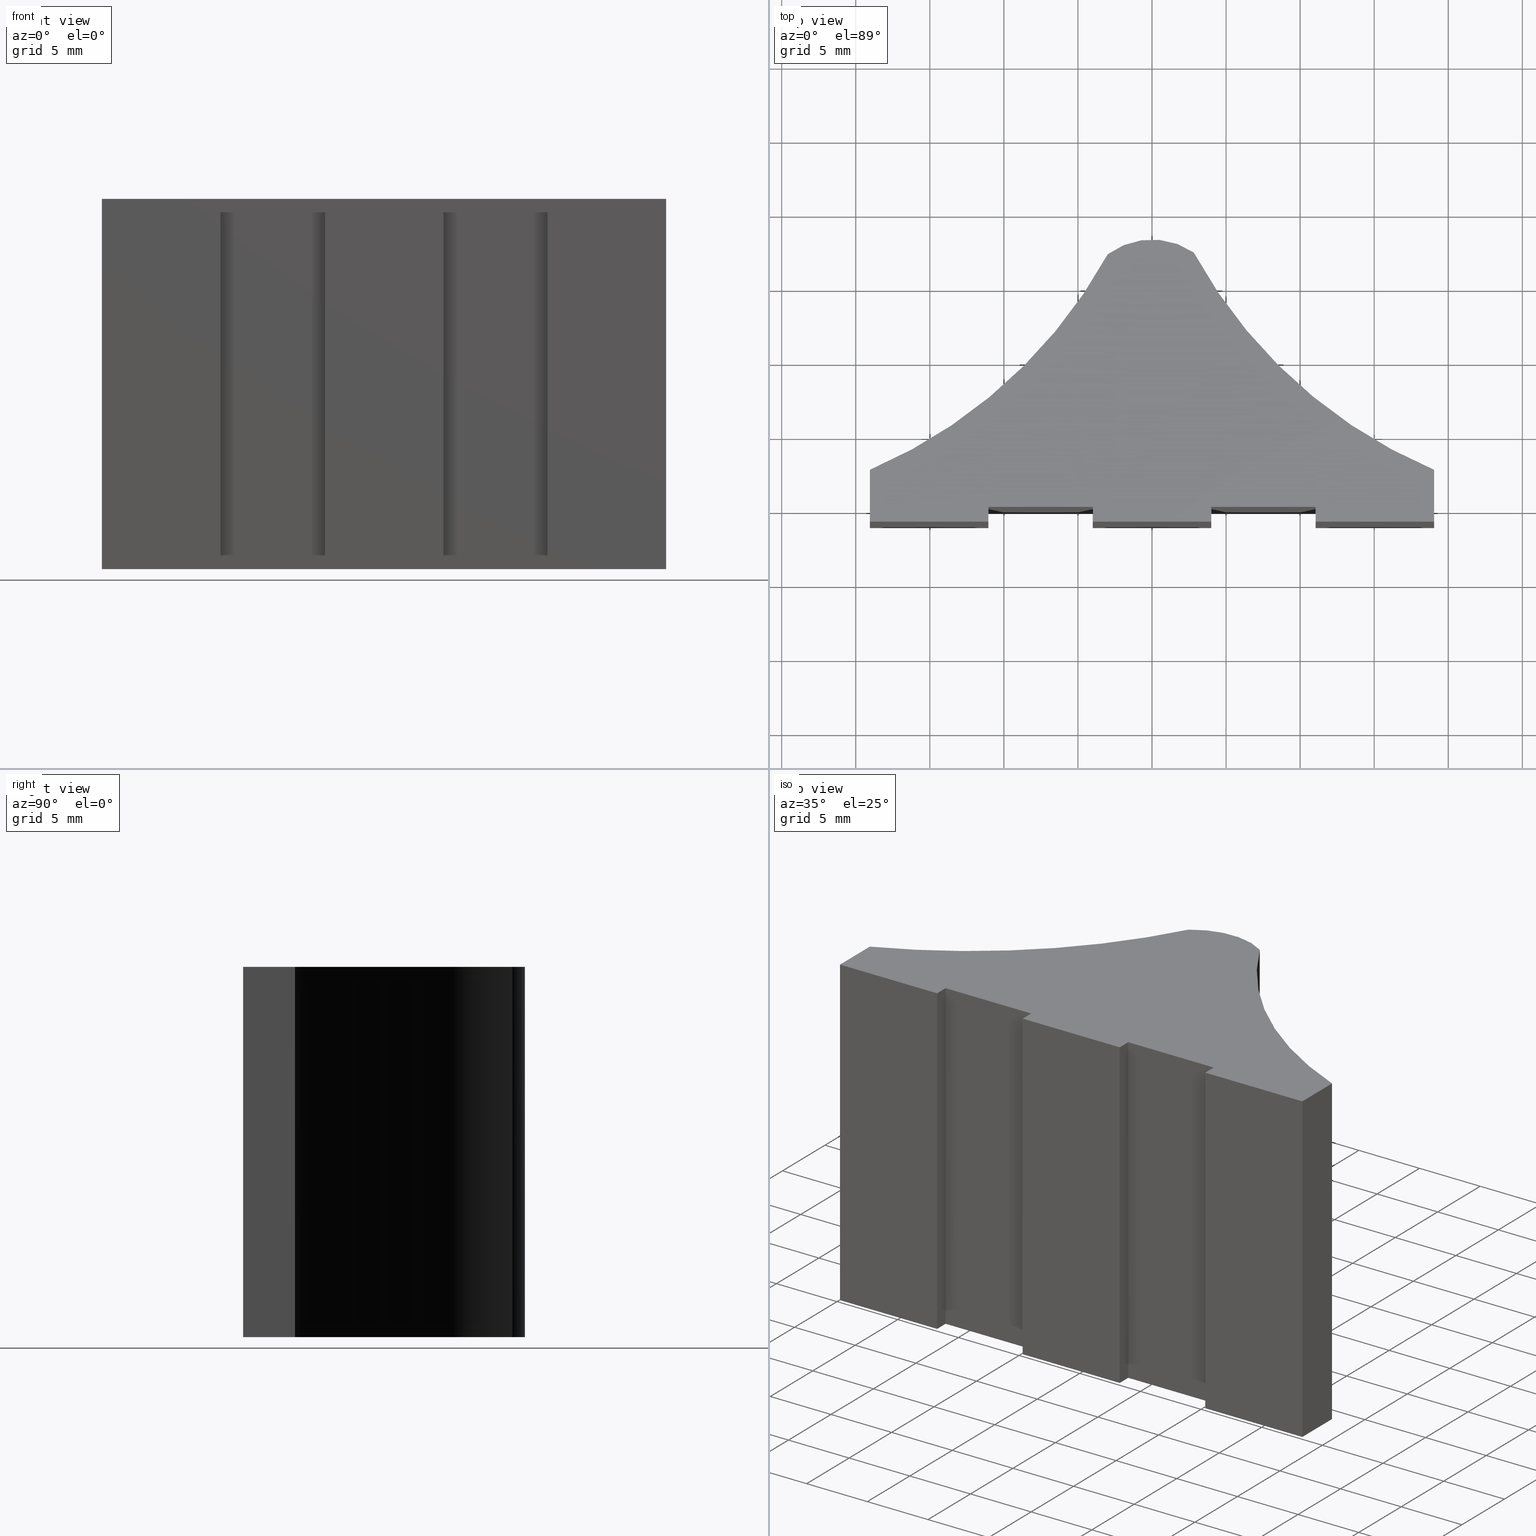
[diagram: canonical four-view strip — front | top / right | iso, engineering-drawing reading convention]
A machine part, canonical four-view strip (front | top / right | iso — engineering-drawing reading convention). The complete STEP part file that produces these views, byte-faithful:
ISO-10303-21;
HEADER;
/* Generated by software containing ST-Developer
 * from STEP Tools, Inc. (www.steptools.com) 
 */

FILE_DESCRIPTION(
/* description */ (''),
/* implementation_level */ '2;1');

FILE_NAME(
/* name */ 'E_3_01_07_09_00_WKZ-0180.stp',
/* time_stamp */ '2025-11-24T12:54:27+01:00',
/* author */ ('d.fischer'),
/* organization */ (''),
/* preprocessor_version */ 'ST-DEVELOPER v20',
/* originating_system */ 'Autodesk Inventor 2025',
/* authorisation */ '');

FILE_SCHEMA (('AUTOMOTIVE_DESIGN { 1 0 10303 214 3 1 1 }'));
ENDSEC;

DATA;
#10=MECHANICAL_DESIGN_GEOMETRIC_PRESENTATION_REPRESENTATION('',(#17,#18),
#529);
#11=SHAPE_REPRESENTATION_RELATIONSHIP('SRR','None',#536,#12);
#12=ADVANCED_BREP_SHAPE_REPRESENTATION('',(#13),#528);
#13=MANIFOLD_SOLID_BREP('Volumenk\X\F6rper1',#312);
#14=CYLINDRICAL_SURFACE('',#348,33.2);
#15=CYLINDRICAL_SURFACE('',#350,5.);
#16=CYLINDRICAL_SURFACE('',#352,33.2);
#17=STYLED_ITEM('',(#546),#300);
#18=STYLED_ITEM('',(#545),#13);
#19=FACE_OUTER_BOUND('',#35,.T.);
#20=FACE_OUTER_BOUND('',#36,.T.);
#21=FACE_OUTER_BOUND('',#37,.T.);
#22=FACE_OUTER_BOUND('',#38,.T.);
#23=FACE_OUTER_BOUND('',#39,.T.);
#24=FACE_OUTER_BOUND('',#40,.T.);
#25=FACE_OUTER_BOUND('',#41,.T.);
#26=FACE_OUTER_BOUND('',#42,.T.);
#27=FACE_OUTER_BOUND('',#43,.T.);
#28=FACE_OUTER_BOUND('',#44,.T.);
#29=FACE_OUTER_BOUND('',#45,.T.);
#30=FACE_OUTER_BOUND('',#46,.T.);
#31=FACE_OUTER_BOUND('',#47,.T.);
#32=FACE_OUTER_BOUND('',#48,.T.);
#33=FACE_OUTER_BOUND('',#49,.T.);
#34=FACE_OUTER_BOUND('',#50,.T.);
#35=EDGE_LOOP('',(#199,#200,#201,#202,#203,#204,#205,#206,#207,#208,#209,
#210,#211,#212));
#36=EDGE_LOOP('',(#213,#214,#215,#216));
#37=EDGE_LOOP('',(#217,#218,#219,#220));
#38=EDGE_LOOP('',(#221,#222,#223,#224));
#39=EDGE_LOOP('',(#225,#226,#227,#228));
#40=EDGE_LOOP('',(#229,#230,#231,#232));
#41=EDGE_LOOP('',(#233,#234,#235,#236));
#42=EDGE_LOOP('',(#237,#238,#239,#240));
#43=EDGE_LOOP('',(#241,#242,#243,#244));
#44=EDGE_LOOP('',(#245,#246,#247,#248));
#45=EDGE_LOOP('',(#249,#250,#251,#252));
#46=EDGE_LOOP('',(#253,#254,#255,#256));
#47=EDGE_LOOP('',(#257,#258,#259,#260));
#48=EDGE_LOOP('',(#261,#262,#263,#264));
#49=EDGE_LOOP('',(#265,#266,#267,#268));
#50=EDGE_LOOP('',(#269,#270,#271,#272,#273,#274,#275,#276,#277,#278,#279,
#280,#281,#282));
#51=CIRCLE('',#336,33.2);
#52=CIRCLE('',#337,5.);
#53=CIRCLE('',#338,33.2);
#54=CIRCLE('',#349,33.2);
#55=CIRCLE('',#351,5.);
#56=CIRCLE('',#353,33.2);
#57=LINE('',#443,#93);
#58=LINE('',#445,#94);
#59=LINE('',#447,#95);
#60=LINE('',#449,#96);
#61=LINE('',#451,#97);
#62=LINE('',#453,#98);
#63=LINE('',#455,#99);
#64=LINE('',#457,#100);
#65=LINE('',#459,#101);
#66=LINE('',#461,#102);
#67=LINE('',#463,#103);
#68=LINE('',#472,#104);
#69=LINE('',#473,#105);
#70=LINE('',#474,#106);
#71=LINE('',#477,#107);
#72=LINE('',#478,#108);
#73=LINE('',#481,#109);
#74=LINE('',#482,#110);
#75=LINE('',#485,#111);
#76=LINE('',#486,#112);
#77=LINE('',#489,#113);
#78=LINE('',#490,#114);
#79=LINE('',#493,#115);
#80=LINE('',#494,#116);
#81=LINE('',#497,#117);
#82=LINE('',#498,#118);
#83=LINE('',#501,#119);
#84=LINE('',#502,#120);
#85=LINE('',#505,#121);
#86=LINE('',#506,#122);
#87=LINE('',#510,#123);
#88=LINE('',#514,#124);
#89=LINE('',#518,#125);
#90=LINE('',#521,#126);
#91=LINE('',#522,#127);
#92=LINE('',#524,#128);
#93=VECTOR('',#361,10.);
#94=VECTOR('',#362,10.);
#95=VECTOR('',#363,10.);
#96=VECTOR('',#364,10.);
#97=VECTOR('',#365,10.);
#98=VECTOR('',#366,10.);
#99=VECTOR('',#367,10.);
#100=VECTOR('',#368,10.);
#101=VECTOR('',#369,10.);
#102=VECTOR('',#370,10.);
#103=VECTOR('',#371,10.);
#104=VECTOR('',#380,10.);
#105=VECTOR('',#381,10.);
#106=VECTOR('',#382,10.);
#107=VECTOR('',#385,10.);
#108=VECTOR('',#386,10.);
#109=VECTOR('',#389,10.);
#110=VECTOR('',#390,10.);
#111=VECTOR('',#393,10.);
#112=VECTOR('',#394,10.);
#113=VECTOR('',#397,10.);
#114=VECTOR('',#398,10.);
#115=VECTOR('',#401,10.);
#116=VECTOR('',#402,10.);
#117=VECTOR('',#405,10.);
#118=VECTOR('',#406,10.);
#119=VECTOR('',#409,10.);
#120=VECTOR('',#410,10.);
#121=VECTOR('',#413,10.);
#122=VECTOR('',#414,10.);
#123=VECTOR('',#419,10.);
#124=VECTOR('',#424,10.);
#125=VECTOR('',#429,10.);
#126=VECTOR('',#432,10.);
#127=VECTOR('',#433,10.);
#128=VECTOR('',#436,10.);
#129=VERTEX_POINT('',#441);
#130=VERTEX_POINT('',#442);
#131=VERTEX_POINT('',#444);
#132=VERTEX_POINT('',#446);
#133=VERTEX_POINT('',#448);
#134=VERTEX_POINT('',#450);
#135=VERTEX_POINT('',#452);
#136=VERTEX_POINT('',#454);
#137=VERTEX_POINT('',#456);
#138=VERTEX_POINT('',#458);
#139=VERTEX_POINT('',#460);
#140=VERTEX_POINT('',#462);
#141=VERTEX_POINT('',#464);
#142=VERTEX_POINT('',#466);
#143=VERTEX_POINT('',#470);
#144=VERTEX_POINT('',#471);
#145=VERTEX_POINT('',#476);
#146=VERTEX_POINT('',#480);
#147=VERTEX_POINT('',#484);
#148=VERTEX_POINT('',#488);
#149=VERTEX_POINT('',#492);
#150=VERTEX_POINT('',#496);
#151=VERTEX_POINT('',#500);
#152=VERTEX_POINT('',#504);
#153=VERTEX_POINT('',#508);
#154=VERTEX_POINT('',#512);
#155=VERTEX_POINT('',#516);
#156=VERTEX_POINT('',#520);
#157=EDGE_CURVE('',#129,#130,#57,.T.);
#158=EDGE_CURVE('',#131,#129,#58,.T.);
#159=EDGE_CURVE('',#132,#131,#59,.T.);
#160=EDGE_CURVE('',#133,#132,#60,.T.);
#161=EDGE_CURVE('',#134,#133,#61,.T.);
#162=EDGE_CURVE('',#135,#134,#62,.T.);
#163=EDGE_CURVE('',#136,#135,#63,.T.);
#164=EDGE_CURVE('',#137,#136,#64,.T.);
#165=EDGE_CURVE('',#138,#137,#65,.T.);
#166=EDGE_CURVE('',#139,#138,#66,.T.);
#167=EDGE_CURVE('',#140,#139,#67,.T.);
#168=EDGE_CURVE('',#141,#140,#51,.T.);
#169=EDGE_CURVE('',#142,#141,#52,.T.);
#170=EDGE_CURVE('',#130,#142,#53,.T.);
#171=EDGE_CURVE('',#143,#144,#68,.T.);
#172=EDGE_CURVE('',#144,#132,#69,.T.);
#173=EDGE_CURVE('',#143,#131,#70,.T.);
#174=EDGE_CURVE('',#144,#145,#71,.T.);
#175=EDGE_CURVE('',#145,#133,#72,.T.);
#176=EDGE_CURVE('',#145,#146,#73,.T.);
#177=EDGE_CURVE('',#146,#134,#74,.T.);
#178=EDGE_CURVE('',#146,#147,#75,.T.);
#179=EDGE_CURVE('',#147,#135,#76,.T.);
#180=EDGE_CURVE('',#147,#148,#77,.T.);
#181=EDGE_CURVE('',#148,#136,#78,.T.);
#182=EDGE_CURVE('',#148,#149,#79,.T.);
#183=EDGE_CURVE('',#149,#137,#80,.T.);
#184=EDGE_CURVE('',#149,#150,#81,.T.);
#185=EDGE_CURVE('',#150,#138,#82,.T.);
#186=EDGE_CURVE('',#150,#151,#83,.T.);
#187=EDGE_CURVE('',#151,#139,#84,.T.);
#188=EDGE_CURVE('',#151,#152,#85,.T.);
#189=EDGE_CURVE('',#152,#140,#86,.T.);
#190=EDGE_CURVE('',#152,#153,#54,.T.);
#191=EDGE_CURVE('',#153,#141,#87,.T.);
#192=EDGE_CURVE('',#153,#154,#55,.T.);
#193=EDGE_CURVE('',#154,#142,#88,.T.);
#194=EDGE_CURVE('',#154,#155,#56,.T.);
#195=EDGE_CURVE('',#155,#130,#89,.T.);
#196=EDGE_CURVE('',#155,#156,#90,.T.);
#197=EDGE_CURVE('',#129,#156,#91,.T.);
#198=EDGE_CURVE('',#156,#143,#92,.T.);
#199=ORIENTED_EDGE('',*,*,#157,.F.);
#200=ORIENTED_EDGE('',*,*,#158,.F.);
#201=ORIENTED_EDGE('',*,*,#159,.F.);
#202=ORIENTED_EDGE('',*,*,#160,.F.);
#203=ORIENTED_EDGE('',*,*,#161,.F.);
#204=ORIENTED_EDGE('',*,*,#162,.F.);
#205=ORIENTED_EDGE('',*,*,#163,.F.);
#206=ORIENTED_EDGE('',*,*,#164,.F.);
#207=ORIENTED_EDGE('',*,*,#165,.F.);
#208=ORIENTED_EDGE('',*,*,#166,.F.);
#209=ORIENTED_EDGE('',*,*,#167,.F.);
#210=ORIENTED_EDGE('',*,*,#168,.F.);
#211=ORIENTED_EDGE('',*,*,#169,.F.);
#212=ORIENTED_EDGE('',*,*,#170,.F.);
#213=ORIENTED_EDGE('',*,*,#171,.T.);
#214=ORIENTED_EDGE('',*,*,#172,.T.);
#215=ORIENTED_EDGE('',*,*,#159,.T.);
#216=ORIENTED_EDGE('',*,*,#173,.F.);
#217=ORIENTED_EDGE('',*,*,#174,.T.);
#218=ORIENTED_EDGE('',*,*,#175,.T.);
#219=ORIENTED_EDGE('',*,*,#160,.T.);
#220=ORIENTED_EDGE('',*,*,#172,.F.);
#221=ORIENTED_EDGE('',*,*,#176,.T.);
#222=ORIENTED_EDGE('',*,*,#177,.T.);
#223=ORIENTED_EDGE('',*,*,#161,.T.);
#224=ORIENTED_EDGE('',*,*,#175,.F.);
#225=ORIENTED_EDGE('',*,*,#178,.T.);
#226=ORIENTED_EDGE('',*,*,#179,.T.);
#227=ORIENTED_EDGE('',*,*,#162,.T.);
#228=ORIENTED_EDGE('',*,*,#177,.F.);
#229=ORIENTED_EDGE('',*,*,#180,.T.);
#230=ORIENTED_EDGE('',*,*,#181,.T.);
#231=ORIENTED_EDGE('',*,*,#163,.T.);
#232=ORIENTED_EDGE('',*,*,#179,.F.);
#233=ORIENTED_EDGE('',*,*,#182,.T.);
#234=ORIENTED_EDGE('',*,*,#183,.T.);
#235=ORIENTED_EDGE('',*,*,#164,.T.);
#236=ORIENTED_EDGE('',*,*,#181,.F.);
#237=ORIENTED_EDGE('',*,*,#184,.T.);
#238=ORIENTED_EDGE('',*,*,#185,.T.);
#239=ORIENTED_EDGE('',*,*,#165,.T.);
#240=ORIENTED_EDGE('',*,*,#183,.F.);
#241=ORIENTED_EDGE('',*,*,#186,.T.);
#242=ORIENTED_EDGE('',*,*,#187,.T.);
#243=ORIENTED_EDGE('',*,*,#166,.T.);
#244=ORIENTED_EDGE('',*,*,#185,.F.);
#245=ORIENTED_EDGE('',*,*,#188,.T.);
#246=ORIENTED_EDGE('',*,*,#189,.T.);
#247=ORIENTED_EDGE('',*,*,#167,.T.);
#248=ORIENTED_EDGE('',*,*,#187,.F.);
#249=ORIENTED_EDGE('',*,*,#190,.T.);
#250=ORIENTED_EDGE('',*,*,#191,.T.);
#251=ORIENTED_EDGE('',*,*,#168,.T.);
#252=ORIENTED_EDGE('',*,*,#189,.F.);
#253=ORIENTED_EDGE('',*,*,#192,.T.);
#254=ORIENTED_EDGE('',*,*,#193,.T.);
#255=ORIENTED_EDGE('',*,*,#169,.T.);
#256=ORIENTED_EDGE('',*,*,#191,.F.);
#257=ORIENTED_EDGE('',*,*,#194,.T.);
#258=ORIENTED_EDGE('',*,*,#195,.T.);
#259=ORIENTED_EDGE('',*,*,#170,.T.);
#260=ORIENTED_EDGE('',*,*,#193,.F.);
#261=ORIENTED_EDGE('',*,*,#196,.T.);
#262=ORIENTED_EDGE('',*,*,#197,.F.);
#263=ORIENTED_EDGE('',*,*,#157,.T.);
#264=ORIENTED_EDGE('',*,*,#195,.F.);
#265=ORIENTED_EDGE('',*,*,#198,.T.);
#266=ORIENTED_EDGE('',*,*,#173,.T.);
#267=ORIENTED_EDGE('',*,*,#158,.T.);
#268=ORIENTED_EDGE('',*,*,#197,.T.);
#269=ORIENTED_EDGE('',*,*,#171,.F.);
#270=ORIENTED_EDGE('',*,*,#198,.F.);
#271=ORIENTED_EDGE('',*,*,#196,.F.);
#272=ORIENTED_EDGE('',*,*,#194,.F.);
#273=ORIENTED_EDGE('',*,*,#192,.F.);
#274=ORIENTED_EDGE('',*,*,#190,.F.);
#275=ORIENTED_EDGE('',*,*,#188,.F.);
#276=ORIENTED_EDGE('',*,*,#186,.F.);
#277=ORIENTED_EDGE('',*,*,#184,.F.);
#278=ORIENTED_EDGE('',*,*,#182,.F.);
#279=ORIENTED_EDGE('',*,*,#180,.F.);
#280=ORIENTED_EDGE('',*,*,#178,.F.);
#281=ORIENTED_EDGE('',*,*,#176,.F.);
#282=ORIENTED_EDGE('',*,*,#174,.F.);
#283=PLANE('',#335);
#284=PLANE('',#339);
#285=PLANE('',#340);
#286=PLANE('',#341);
#287=PLANE('',#342);
#288=PLANE('',#343);
#289=PLANE('',#344);
#290=PLANE('',#345);
#291=PLANE('',#346);
#292=PLANE('',#347);
#293=PLANE('',#354);
#294=PLANE('',#355);
#295=PLANE('',#356);
#296=ADVANCED_FACE('',(#19),#283,.F.);
#297=ADVANCED_FACE('',(#20),#284,.T.);
#298=ADVANCED_FACE('',(#21),#285,.T.);
#299=ADVANCED_FACE('',(#22),#286,.T.);
#300=ADVANCED_FACE('',(#23),#287,.T.);
#301=ADVANCED_FACE('',(#24),#288,.T.);
#302=ADVANCED_FACE('',(#25),#289,.T.);
#303=ADVANCED_FACE('',(#26),#290,.T.);
#304=ADVANCED_FACE('',(#27),#291,.T.);
#305=ADVANCED_FACE('',(#28),#292,.T.);
#306=ADVANCED_FACE('',(#29),#14,.F.);
#307=ADVANCED_FACE('',(#30),#15,.T.);
#308=ADVANCED_FACE('',(#31),#16,.F.);
#309=ADVANCED_FACE('',(#32),#293,.T.);
#310=ADVANCED_FACE('',(#33),#294,.T.);
#311=ADVANCED_FACE('',(#34),#295,.T.);
#312=CLOSED_SHELL('',(#296,#297,#298,#299,#300,#301,#302,#303,#304,#305,
#306,#307,#308,#309,#310,#311));
#313=DERIVED_UNIT_ELEMENT(#316,1.);
#314=DERIVED_UNIT_ELEMENT(#531,-3.);
#315=DIMENSIONAL_EXPONENTS(0.,1.,0.,0.,0.,0.,0.);
#316=(
CONVERSION_BASED_UNIT('gram',#318)
MASS_UNIT()
NAMED_UNIT(#315)
);
#317=(
MASS_UNIT()
NAMED_UNIT(*)
SI_UNIT(.KILO.,.GRAM.)
);
#318=MASS_MEASURE_WITH_UNIT(MASS_MEASURE(0.001),#317);
#319=DERIVED_UNIT((#313,#314));
#320=MEASURE_REPRESENTATION_ITEM('density measure',
POSITIVE_RATIO_MEASURE(8.03),#319);
#321=PROPERTY_DEFINITION_REPRESENTATION(#326,#323);
#322=PROPERTY_DEFINITION_REPRESENTATION(#327,#324);
#323=REPRESENTATION('material name',(#325),#528);
#324=REPRESENTATION('density',(#320),#528);
#325=DESCRIPTIVE_REPRESENTATION_ITEM('1.4301','1.4301');
#326=PROPERTY_DEFINITION('material property','material name',#538);
#327=PROPERTY_DEFINITION('material property','density of part',#538);
#328=DATE_TIME_ROLE('creation_date');
#329=APPLIED_DATE_AND_TIME_ASSIGNMENT(#330,#328,(#538));
#330=DATE_AND_TIME(#331,#332);
#331=CALENDAR_DATE(2011,19,10);
#332=LOCAL_TIME(0,0,0.,#333);
#333=COORDINATED_UNIVERSAL_TIME_OFFSET(0,0,.BEHIND.);
#334=AXIS2_PLACEMENT_3D('',#439,#357,#358);
#335=AXIS2_PLACEMENT_3D('',#440,#359,#360);
#336=AXIS2_PLACEMENT_3D('',#465,#372,#373);
#337=AXIS2_PLACEMENT_3D('',#467,#374,#375);
#338=AXIS2_PLACEMENT_3D('',#468,#376,#377);
#339=AXIS2_PLACEMENT_3D('',#469,#378,#379);
#340=AXIS2_PLACEMENT_3D('',#475,#383,#384);
#341=AXIS2_PLACEMENT_3D('',#479,#387,#388);
#342=AXIS2_PLACEMENT_3D('',#483,#391,#392);
#343=AXIS2_PLACEMENT_3D('',#487,#395,#396);
#344=AXIS2_PLACEMENT_3D('',#491,#399,#400);
#345=AXIS2_PLACEMENT_3D('',#495,#403,#404);
#346=AXIS2_PLACEMENT_3D('',#499,#407,#408);
#347=AXIS2_PLACEMENT_3D('',#503,#411,#412);
#348=AXIS2_PLACEMENT_3D('',#507,#415,#416);
#349=AXIS2_PLACEMENT_3D('',#509,#417,#418);
#350=AXIS2_PLACEMENT_3D('',#511,#420,#421);
#351=AXIS2_PLACEMENT_3D('',#513,#422,#423);
#352=AXIS2_PLACEMENT_3D('',#515,#425,#426);
#353=AXIS2_PLACEMENT_3D('',#517,#427,#428);
#354=AXIS2_PLACEMENT_3D('',#519,#430,#431);
#355=AXIS2_PLACEMENT_3D('',#523,#434,#435);
#356=AXIS2_PLACEMENT_3D('',#525,#437,#438);
#357=DIRECTION('axis',(0.,0.,1.));
#358=DIRECTION('refdir',(1.,0.,0.));
#359=DIRECTION('center_axis',(0.,0.,1.));
#360=DIRECTION('ref_axis',(1.,0.,0.));
#361=DIRECTION('',(-6.34413156928661E-16,1.,0.));
#362=DIRECTION('',(1.,0.,0.));
#363=DIRECTION('',(0.,-1.,0.));
#364=DIRECTION('',(1.,-8.61210236300542E-17,0.));
#365=DIRECTION('',(0.,1.,0.));
#366=DIRECTION('',(1.,0.,0.));
#367=DIRECTION('',(0.,-1.,0.));
#368=DIRECTION('',(1.,8.61210236300542E-17,0.));
#369=DIRECTION('',(0.,1.,0.));
#370=DIRECTION('',(1.,0.,0.));
#371=DIRECTION('',(0.,-1.,0.));
#372=DIRECTION('center_axis',(0.,0.,-1.));
#373=DIRECTION('ref_axis',(0.392774549218538,-0.919634793538269,0.));
#374=DIRECTION('center_axis',(0.,0.,1.));
#375=DIRECTION('ref_axis',(-0.562151423304266,-0.827034326540917,0.));
#376=DIRECTION('center_axis',(0.,0.,-1.));
#377=DIRECTION('ref_axis',(-0.877780937248784,-0.479062236251874,0.));
#378=DIRECTION('center_axis',(-1.,0.,0.));
#379=DIRECTION('ref_axis',(0.,0.,1.));
#380=DIRECTION('',(0.,1.,0.));
#381=DIRECTION('',(0.,0.,-1.));
#382=DIRECTION('',(0.,0.,-1.));
#383=DIRECTION('center_axis',(-8.61210236300542E-17,-1.,0.));
#384=DIRECTION('ref_axis',(0.,0.,-1.));
#385=DIRECTION('',(-1.,8.61210236300542E-17,0.));
#386=DIRECTION('',(0.,0.,-1.));
#387=DIRECTION('center_axis',(1.,0.,0.));
#388=DIRECTION('ref_axis',(0.,0.,-1.));
#389=DIRECTION('',(0.,-1.,0.));
#390=DIRECTION('',(0.,0.,-1.));
#391=DIRECTION('center_axis',(0.,-1.,0.));
#392=DIRECTION('ref_axis',(0.,0.,-1.));
#393=DIRECTION('',(-1.,0.,0.));
#394=DIRECTION('',(0.,0.,-1.));
#395=DIRECTION('center_axis',(-1.,0.,0.));
#396=DIRECTION('ref_axis',(0.,0.,1.));
#397=DIRECTION('',(0.,1.,0.));
#398=DIRECTION('',(0.,0.,-1.));
#399=DIRECTION('center_axis',(8.61210236300542E-17,-1.,0.));
#400=DIRECTION('ref_axis',(0.,0.,-1.));
#401=DIRECTION('',(-1.,-8.61210236300542E-17,0.));
#402=DIRECTION('',(0.,0.,-1.));
#403=DIRECTION('center_axis',(1.,0.,0.));
#404=DIRECTION('ref_axis',(0.,0.,-1.));
#405=DIRECTION('',(0.,-1.,0.));
#406=DIRECTION('',(0.,0.,-1.));
#407=DIRECTION('center_axis',(0.,-1.,0.));
#408=DIRECTION('ref_axis',(0.,0.,-1.));
#409=DIRECTION('',(-1.,0.,0.));
#410=DIRECTION('',(0.,0.,-1.));
#411=DIRECTION('center_axis',(-1.,0.,0.));
#412=DIRECTION('ref_axis',(0.,0.,1.));
#413=DIRECTION('',(0.,1.,0.));
#414=DIRECTION('',(0.,0.,-1.));
#415=DIRECTION('center_axis',(0.,0.,1.));
#416=DIRECTION('ref_axis',(0.392774549218538,-0.919634793538269,0.));
#417=DIRECTION('center_axis',(0.,0.,1.));
#418=DIRECTION('ref_axis',(0.392774549218538,-0.919634793538269,0.));
#419=DIRECTION('',(0.,0.,-1.));
#420=DIRECTION('center_axis',(0.,0.,1.));
#421=DIRECTION('ref_axis',(-0.562151423304266,-0.827034326540917,0.));
#422=DIRECTION('center_axis',(0.,0.,-1.));
#423=DIRECTION('ref_axis',(-0.562151423304266,-0.827034326540917,0.));
#424=DIRECTION('',(0.,0.,-1.));
#425=DIRECTION('center_axis',(0.,0.,1.));
#426=DIRECTION('ref_axis',(-0.877780937248784,-0.479062236251874,0.));
#427=DIRECTION('center_axis',(0.,0.,1.));
#428=DIRECTION('ref_axis',(-0.877780937248784,-0.479062236251874,0.));
#429=DIRECTION('',(0.,0.,-1.));
#430=DIRECTION('center_axis',(1.,6.34413156928661E-16,0.));
#431=DIRECTION('ref_axis',(0.,0.,-1.));
#432=DIRECTION('',(6.34413156928661E-16,-1.,0.));
#433=DIRECTION('',(0.,0.,1.));
#434=DIRECTION('center_axis',(0.,-1.,0.));
#435=DIRECTION('ref_axis',(0.,0.,-1.));
#436=DIRECTION('',(-1.,0.,0.));
#437=DIRECTION('center_axis',(0.,0.,1.));
#438=DIRECTION('ref_axis',(1.,0.,0.));
#439=CARTESIAN_POINT('',(0.,0.,0.));
#440=CARTESIAN_POINT('Origin',(-0.00548119044075132,4.89485500603167,-12.5));
#441=CARTESIAN_POINT('',(19.05,-1.,-12.5));
#442=CARTESIAN_POINT('',(19.05,2.5,-12.5));
#443=CARTESIAN_POINT('',(19.05,2.5,-12.5));
#444=CARTESIAN_POINT('',(11.05,-1.,-12.5));
#445=CARTESIAN_POINT('',(19.05,-1.,-12.5));
#446=CARTESIAN_POINT('',(11.05,0.,-12.5));
#447=CARTESIAN_POINT('',(11.05,-1.,-12.5));
#448=CARTESIAN_POINT('',(4.,6.07153216591882E-16,-12.5));
#449=CARTESIAN_POINT('',(11.05,0.,-12.5));
#450=CARTESIAN_POINT('',(4.,-0.999999999999995,-12.5));
#451=CARTESIAN_POINT('',(4.,6.07153216591882E-16,-12.5));
#452=CARTESIAN_POINT('',(-4.,-0.999999999999995,-12.5));
#453=CARTESIAN_POINT('',(4.,-0.999999999999995,-12.5));
#454=CARTESIAN_POINT('',(-4.,6.07153216591882E-16,-12.5));
#455=CARTESIAN_POINT('',(-4.,-0.999999999999995,-12.5));
#456=CARTESIAN_POINT('',(-11.05,0.,-12.5));
#457=CARTESIAN_POINT('',(-4.,6.07153216591882E-16,-12.5));
#458=CARTESIAN_POINT('',(-11.05,-1.,-12.5));
#459=CARTESIAN_POINT('',(-11.05,0.,-12.5));
#460=CARTESIAN_POINT('',(-19.05,-1.,-12.5));
#461=CARTESIAN_POINT('',(-11.05,-1.,-12.5));
#462=CARTESIAN_POINT('',(-19.05,2.5,-12.5));
#463=CARTESIAN_POINT('',(-19.05,-1.,-12.5));
#464=CARTESIAN_POINT('',(-2.98296810637382,17.0627174428754,-12.5));
#465=CARTESIAN_POINT('Origin',(-32.0901150340555,33.0318751454705,-12.5));
#466=CARTESIAN_POINT('',(2.81075711652133,17.1851716327046,-12.5));
#467=CARTESIAN_POINT('Origin',(0.,13.05,-12.5));
#468=CARTESIAN_POINT('Origin',(31.953084233181,33.0900378762668,-12.5));
#469=CARTESIAN_POINT('Origin',(11.05,-1.,0.));
#470=CARTESIAN_POINT('',(11.05,-1.,12.5));
#471=CARTESIAN_POINT('',(11.05,0.,12.5));
#472=CARTESIAN_POINT('',(11.05,-1.,12.5));
#473=CARTESIAN_POINT('',(11.05,0.,0.));
#474=CARTESIAN_POINT('',(11.05,-1.,0.));
#475=CARTESIAN_POINT('Origin',(11.05,0.,0.));
#476=CARTESIAN_POINT('',(4.,6.07153216591882E-16,12.5));
#477=CARTESIAN_POINT('',(11.05,0.,12.5));
#478=CARTESIAN_POINT('',(4.,6.07153216591882E-16,0.));
#479=CARTESIAN_POINT('Origin',(4.,6.07153216591882E-16,0.));
#480=CARTESIAN_POINT('',(4.,-0.999999999999995,12.5));
#481=CARTESIAN_POINT('',(4.,6.07153216591882E-16,12.5));
#482=CARTESIAN_POINT('',(4.,-0.999999999999995,0.));
#483=CARTESIAN_POINT('Origin',(4.,-0.999999999999995,0.));
#484=CARTESIAN_POINT('',(-4.,-0.999999999999995,12.5));
#485=CARTESIAN_POINT('',(4.,-0.999999999999995,12.5));
#486=CARTESIAN_POINT('',(-4.,-0.999999999999995,0.));
#487=CARTESIAN_POINT('Origin',(-4.,-0.999999999999995,0.));
#488=CARTESIAN_POINT('',(-4.,6.07153216591882E-16,12.5));
#489=CARTESIAN_POINT('',(-4.,-0.999999999999995,12.5));
#490=CARTESIAN_POINT('',(-4.,6.07153216591882E-16,0.));
#491=CARTESIAN_POINT('Origin',(-4.,6.07153216591882E-16,0.));
#492=CARTESIAN_POINT('',(-11.05,0.,12.5));
#493=CARTESIAN_POINT('',(-4.,6.07153216591882E-16,12.5));
#494=CARTESIAN_POINT('',(-11.05,0.,0.));
#495=CARTESIAN_POINT('Origin',(-11.05,0.,0.));
#496=CARTESIAN_POINT('',(-11.05,-1.,12.5));
#497=CARTESIAN_POINT('',(-11.05,0.,12.5));
#498=CARTESIAN_POINT('',(-11.05,-1.,0.));
#499=CARTESIAN_POINT('Origin',(-11.05,-1.,0.));
#500=CARTESIAN_POINT('',(-19.05,-1.,12.5));
#501=CARTESIAN_POINT('',(-11.05,-1.,12.5));
#502=CARTESIAN_POINT('',(-19.05,-1.,0.));
#503=CARTESIAN_POINT('Origin',(-19.05,-1.,0.));
#504=CARTESIAN_POINT('',(-19.05,2.5,12.5));
#505=CARTESIAN_POINT('',(-19.05,-1.,12.5));
#506=CARTESIAN_POINT('',(-19.05,2.5,0.));
#507=CARTESIAN_POINT('Origin',(-32.0901150340555,33.0318751454705,0.));
#508=CARTESIAN_POINT('',(-2.98296810637382,17.0627174428754,12.5));
#509=CARTESIAN_POINT('Origin',(-32.0901150340555,33.0318751454705,12.5));
#510=CARTESIAN_POINT('',(-2.98296810637382,17.0627174428754,0.));
#511=CARTESIAN_POINT('Origin',(0.,13.05,0.));
#512=CARTESIAN_POINT('',(2.81075711652133,17.1851716327046,12.5));
#513=CARTESIAN_POINT('Origin',(0.,13.05,12.5));
#514=CARTESIAN_POINT('',(2.81075711652133,17.1851716327046,0.));
#515=CARTESIAN_POINT('Origin',(31.953084233181,33.0900378762668,0.));
#516=CARTESIAN_POINT('',(19.05,2.5,12.5));
#517=CARTESIAN_POINT('Origin',(31.953084233181,33.0900378762668,12.5));
#518=CARTESIAN_POINT('',(19.05,2.5,0.));
#519=CARTESIAN_POINT('Origin',(19.05,2.5,0.));
#520=CARTESIAN_POINT('',(19.05,-1.,12.5));
#521=CARTESIAN_POINT('',(19.05,2.5,12.5));
#522=CARTESIAN_POINT('',(19.05,-1.,0.));
#523=CARTESIAN_POINT('Origin',(19.05,-1.,0.));
#524=CARTESIAN_POINT('',(19.05,-1.,12.5));
#525=CARTESIAN_POINT('Origin',(-0.00548119044075153,4.89485500603167,12.5));
#526=UNCERTAINTY_MEASURE_WITH_UNIT(LENGTH_MEASURE(0.01),#530,
'DISTANCE_ACCURACY_VALUE',
'Maximum model space distance between geometric entities at asserted c
onnectivities');
#527=UNCERTAINTY_MEASURE_WITH_UNIT(LENGTH_MEASURE(0.01),#530,
'DISTANCE_ACCURACY_VALUE',
'Maximum model space distance between geometric entities at asserted c
onnectivities');
#528=(
GEOMETRIC_REPRESENTATION_CONTEXT(3)
GLOBAL_UNCERTAINTY_ASSIGNED_CONTEXT((#526))
GLOBAL_UNIT_ASSIGNED_CONTEXT((#530,#532,#533))
REPRESENTATION_CONTEXT('','3D')
);
#529=(
GEOMETRIC_REPRESENTATION_CONTEXT(3)
GLOBAL_UNCERTAINTY_ASSIGNED_CONTEXT((#527))
GLOBAL_UNIT_ASSIGNED_CONTEXT((#530,#532,#533))
REPRESENTATION_CONTEXT('','3D')
);
#530=(
LENGTH_UNIT()
NAMED_UNIT(*)
SI_UNIT(.MILLI.,.METRE.)
);
#531=(
LENGTH_UNIT()
NAMED_UNIT(*)
SI_UNIT(.CENTI.,.METRE.)
);
#532=(
NAMED_UNIT(*)
PLANE_ANGLE_UNIT()
SI_UNIT($,.RADIAN.)
);
#533=(
NAMED_UNIT(*)
SI_UNIT($,.STERADIAN.)
SOLID_ANGLE_UNIT()
);
#534=SHAPE_DEFINITION_REPRESENTATION(#535,#536);
#535=PRODUCT_DEFINITION_SHAPE('',$,#538);
#536=SHAPE_REPRESENTATION('',(#334),#528);
#537=PRODUCT_DEFINITION_CONTEXT('part definition',#542,'design');
#538=PRODUCT_DEFINITION('WKZ-0180','E_3_01_07_09_00_WKZ-0180',#539,#537);
#539=PRODUCT_DEFINITION_FORMATION('',$,#544);
#540=PRODUCT_RELATED_PRODUCT_CATEGORY('E_3_01_07_09_00_WKZ-0180',
'E_3_01_07_09_00_WKZ-0180',(#544));
#541=APPLICATION_PROTOCOL_DEFINITION('international standard',
'automotive_design',2009,#542);
#542=APPLICATION_CONTEXT(
'Core Data for Automotive Mechanical Design Process');
#543=PRODUCT_CONTEXT('part definition',#542,'mechanical');
#544=PRODUCT('WKZ-0180','E_3_01_07_09_00_WKZ-0180',$,(#543));
#545=PRESENTATION_STYLE_ASSIGNMENT((#547));
#546=PRESENTATION_STYLE_ASSIGNMENT((#548));
#547=SURFACE_STYLE_USAGE(.BOTH.,#551);
#548=SURFACE_STYLE_USAGE(.BOTH.,#552);
#549=SURFACE_STYLE_RENDERING_WITH_PROPERTIES($,#559,(#550));
#550=SURFACE_STYLE_TRANSPARENT(0.);
#551=SURFACE_SIDE_STYLE('',(#553,#549));
#552=SURFACE_SIDE_STYLE('',(#554));
#553=SURFACE_STYLE_FILL_AREA(#555);
#554=SURFACE_STYLE_FILL_AREA(#556);
#555=FILL_AREA_STYLE('',(#557));
#556=FILL_AREA_STYLE('',(#558));
#557=FILL_AREA_STYLE_COLOUR('',#559);
#558=FILL_AREA_STYLE_COLOUR('',#560);
#559=COLOUR_RGB('',0.92156862745098,0.92156862745098,0.92156862745098);
#560=COLOUR_RGB('',0.16078431372549,0.16078431372549,0.16078431372549);
ENDSEC;
END-ISO-10303-21;
